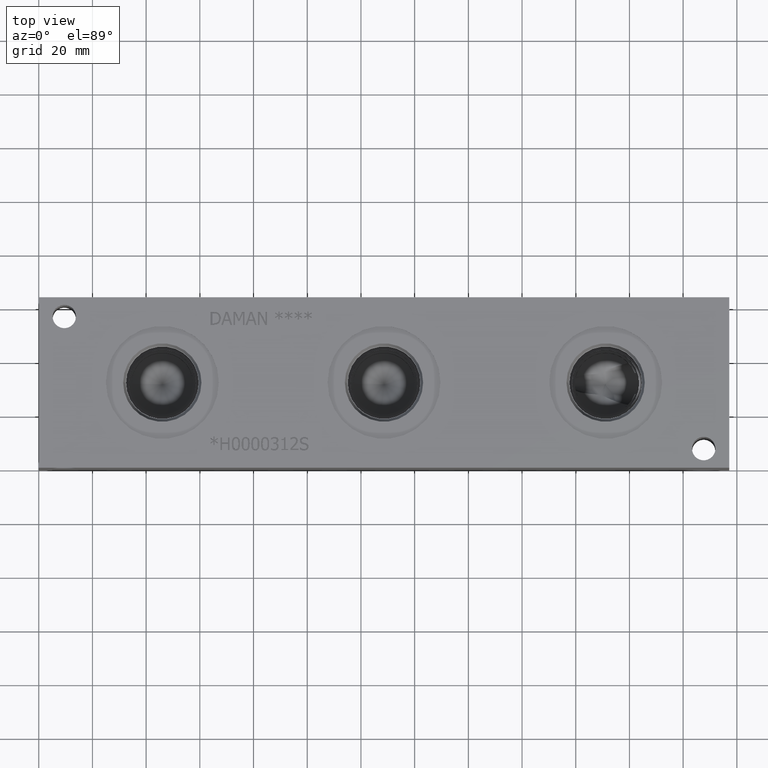
[diagram: clean part render]
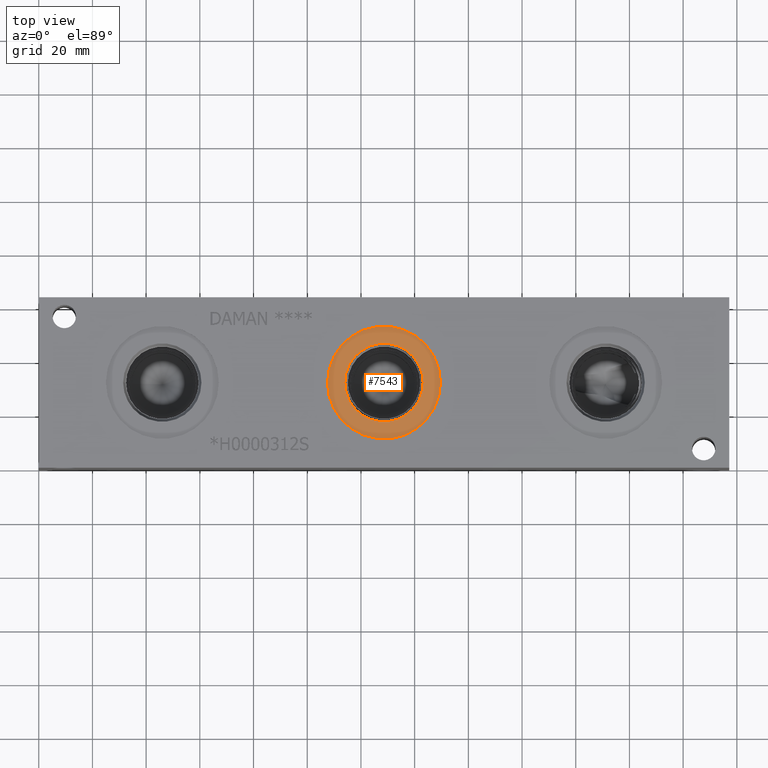
[diagram: same view with one face highlighted and labeled with its STEP entity id]
A machine part, top view. The second image highlights one B-rep face of the part: STEP entity #7543.
In plain terms, the highlighted planar face has unit normal (0, 0, -1).
Its self-contained STEP definition (entity closure, byte-faithful):
#163=CIRCLE('',#7929,21.0185);
#164=CIRCLE('',#7930,21.0185);
#165=CIRCLE('',#7932,14.5923);
#166=CIRCLE('',#7933,14.5923);
#229=FACE_BOUND('',#1346,.T.);
#922=FACE_OUTER_BOUND('',#1345,.T.);
#1345=EDGE_LOOP('',(#6535,#6536));
#1346=EDGE_LOOP('',(#6537,#6538));
#3476=VERTEX_POINT('',#12983);
#3477=VERTEX_POINT('',#12985);
#3478=VERTEX_POINT('',#12989);
#3479=VERTEX_POINT('',#12990);
#4508=EDGE_CURVE('',#3476,#3477,#163,.T.);
#4509=EDGE_CURVE('',#3477,#3476,#164,.T.);
#4510=EDGE_CURVE('',#3478,#3479,#165,.T.);
#4511=EDGE_CURVE('',#3479,#3478,#166,.T.);
#6535=ORIENTED_EDGE('',*,*,#4509,.F.);
#6536=ORIENTED_EDGE('',*,*,#4508,.F.);
#6537=ORIENTED_EDGE('',*,*,#4510,.T.);
#6538=ORIENTED_EDGE('',*,*,#4511,.T.);
#6869=PLANE('',#7931);
#7543=ADVANCED_FACE('',(#922,#229),#6869,.F.);
#7929=AXIS2_PLACEMENT_3D('',#12986,#9370,#9371);
#7930=AXIS2_PLACEMENT_3D('',#12987,#9372,#9373);
#7931=AXIS2_PLACEMENT_3D('',#12988,#9374,#9375);
#7932=AXIS2_PLACEMENT_3D('',#12991,#9376,#9377);
#7933=AXIS2_PLACEMENT_3D('',#12992,#9378,#9379);
#9370=DIRECTION('center_axis',(0.,0.,-1.));
#9371=DIRECTION('ref_axis',(1.,0.,0.));
#9372=DIRECTION('center_axis',(0.,0.,-1.));
#9373=DIRECTION('ref_axis',(1.,0.,0.));
#9374=DIRECTION('center_axis',(0.,0.,-1.));
#9375=DIRECTION('ref_axis',(-1.,0.,0.));
#9376=DIRECTION('center_axis',(0.,0.,-1.));
#9377=DIRECTION('ref_axis',(1.,0.,0.));
#9378=DIRECTION('center_axis',(0.,0.,-1.));
#9379=DIRECTION('ref_axis',(1.,0.,0.));
#12983=CARTESIAN_POINT('',(107.5563,31.75,62.7126));
#12985=CARTESIAN_POINT('',(149.5933,31.75,62.7126));
#12986=CARTESIAN_POINT('Origin',(128.5748,31.75,62.7126));
#12987=CARTESIAN_POINT('Origin',(128.5748,31.75,62.7126));
#12988=CARTESIAN_POINT('Origin',(143.1671,31.75,62.7126));
#12989=CARTESIAN_POINT('',(143.1671,31.75,62.7126));
#12990=CARTESIAN_POINT('',(113.9825,31.75,62.7126));
#12991=CARTESIAN_POINT('Origin',(128.5748,31.75,62.7126));
#12992=CARTESIAN_POINT('Origin',(128.5748,31.75,62.7126));